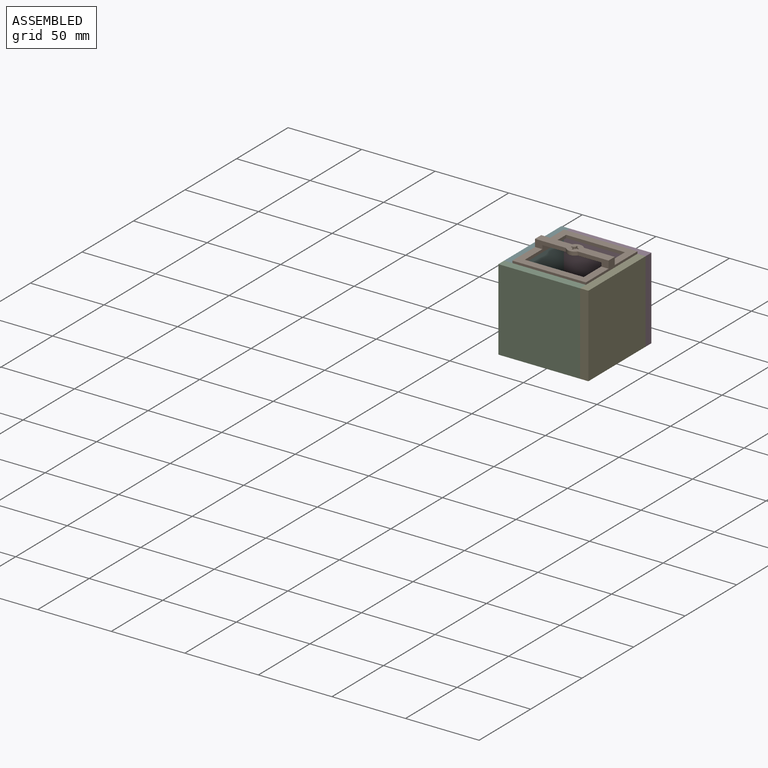
[diagram: assembled view]
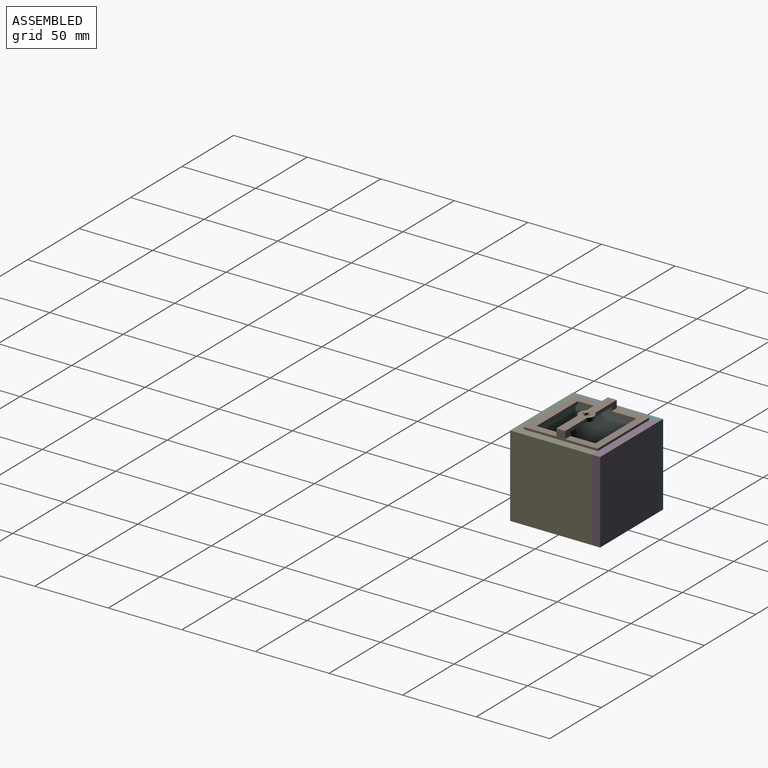
[diagram: assembled view, second angle]
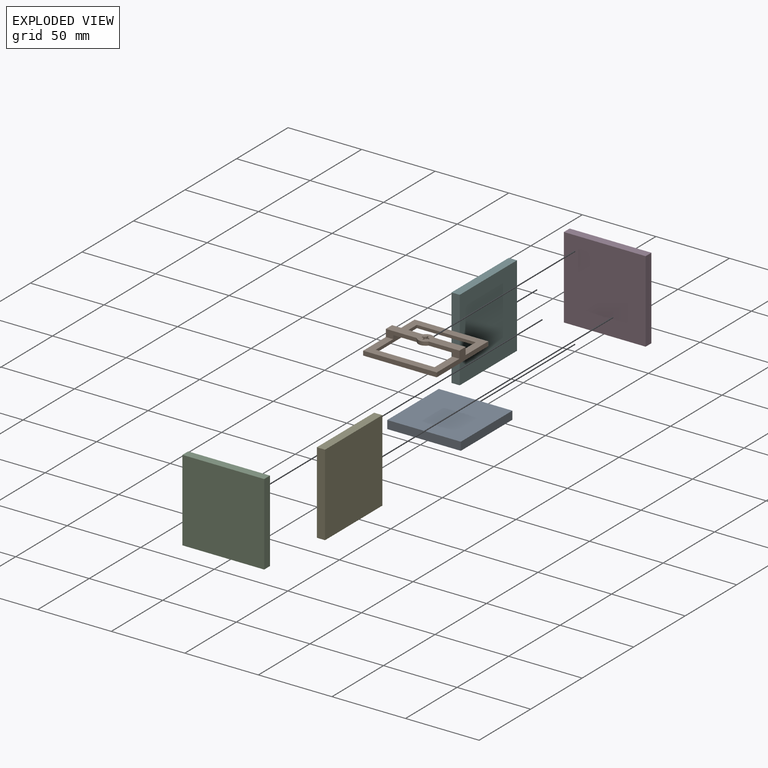
[diagram: exploded view]
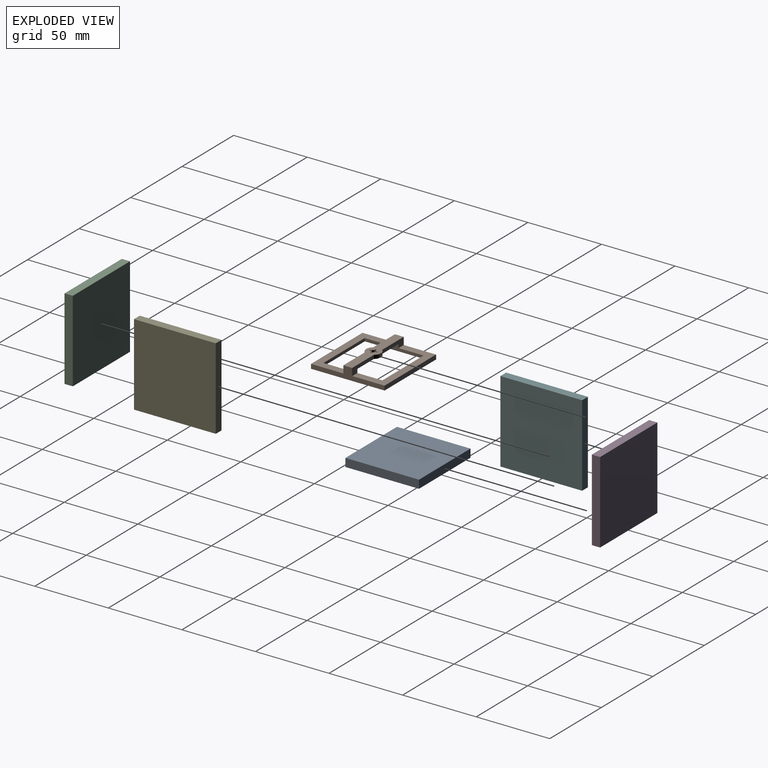
[diagram: exploded view, second angle]
ASSEMBLY  parts=6 mates=4
PART A: 6 faces, bbox 50x50x5.6 mm
  f0: plane 50x5.59mm, normal (1,0,0), area 279.5mm2, adj f1,f3,f4,f5
  f1: plane 50x5.59mm, normal (0,1,0), area 279.5mm2, adj f0,f2,f4,f5
  f2: plane 50x5.59mm, normal (-1,0,0), area 279.5mm2, adj f1,f3,f4,f5
  f3: plane 50x5.59mm, normal (0,-1,0), area 279.5mm2, adj f0,f2,f4,f5
  f4: plane 50x50mm, normal (0,0,1), area 2500mm2, adj f0,f1,f2,f3
  f5: plane 50x50mm, normal (0,0,-1), area 2500mm2, adj f0,f1,f2,f3
PART B: 42 faces, bbox 50x50x8 mm
  f0: plane 50x10mm, normal (0,0,1), area 311.2mm2, adj f5,f7,f18,f19,f20,f21,f23,f24
  f1: cylinder r=0.21mm len=1mm, axis (0,0,1), area 1.3mm2, adj f22,f25
  f2: plane 50x22mm, normal (0,0,1), area 420mm2, adj f5,f6,f7,f14,f15,f16,f18,f20
  f3: plane 50x22mm, normal (0,0,1), area 420mm2, adj f5,f7,f8,f14,f16,f17,f19,f21
  f4: plane 45x45mm, normal (0,0,-1), area 425mm2, adj f10,f11,f12,f13,f14,f15,f16,f17
  f5: plane 50x8mm, normal (1,0,0), area 180mm2, adj f0,f2,f3,f6,f8,f9,f20,f21
  f6: plane 50x3mm, normal (0,1,0), area 150mm2, adj f2,f5,f7,f9
  f7: plane 50x8mm, normal (-1,0,0), area 180mm2, adj f0,f2,f3,f6,f8,f9,f18,f19
  f8: plane 50x3mm, normal (0,-1,0), area 150mm2, adj f3,f5,f7,f9
  f9: plane 50x50mm, normal (0,0,-1), area 475mm2, adj f5,f6,f7,f8,f10,f11,f12,f13
  f10: plane 45x1mm, normal (-1,0,0), area 45mm2, adj f4,f9,f11,f13
  f11: plane 45x1mm, normal (0,-1,0), area 45mm2, adj f4,f9,f10,f12
  f12: plane 45x1mm, normal (1,0,0), area 45mm2, adj f4,f9,f11,f13
  f13: plane 45x1mm, normal (0,1,0), area 45mm2, adj f4,f9,f10,f12
  f14: plane 40x4.5mm, normal (-1,0,0), area 95mm2, adj f2,f3,f4,f15,f17,f20,f21,f22
  f15: plane 40x2mm, normal (0,-1,0), area 80mm2, adj f2,f4,f14,f16
  f16: plane 40x4.5mm, normal (1,0,0), area 95mm2, adj f2,f3,f4,f15,f17,f18,f19,f22
  f17: plane 40x2mm, normal (0,1,0), area 80mm2, adj f3,f4,f14,f16
  f18: plane 21x5mm, normal (0,1,0), area 65mm2, adj f0,f2,f7,f16,f22,f24
  f19: plane 21x5mm, normal (0,-1,0), area 65mm2, adj f0,f3,f7,f16,f22,f23
  f20: plane 21x5mm, normal (0,1,0), area 65mm2, adj f0,f2,f5,f14,f22,f24
  f21: plane 21x5mm, normal (0,-1,0), area 65mm2, adj f0,f3,f5,f14,f22,f23
  f22: plane 40x10mm, normal (0,0,-1), area 262.2mm2, adj f1,f14,f16,f18,f19,f20,f21,f23
  f23: cylinder r=5mm len=8mm, axis (0,0,-1), area 23.2mm2, adj f0,f19,f21,f22
  f24: cylinder r=5mm len=8mm, axis (0,0,-1), area 23.2mm2, adj f0,f18,f20,f22
  f25: plane 5x5mm, normal (0,0,1), area 11mm2, adj f1,f26,f27,f28,f29,f30,f31,f32
  f26: plane 1.5x1mm, normal (0,-1,0), area 1.5mm2, adj f0,f25,f27,f41
  f27: plane 1.5x1.09mm, normal (1,0,0), area 1.6mm2, adj f0,f25,f26,f28
  f28: cylinder r=1.5mm len=1.5mm, axis (0,0,1), area 2mm2, adj f0,f25,f27,f29
  f29: plane 1.5x1.09mm, normal (0,-1,0), area 1.6mm2, adj f0,f25,f28,f30
  f30: plane 1.5x1mm, normal (1,0,0), area 1.5mm2, adj f0,f25,f29,f31
  f31: plane 1.5x1.09mm, normal (0,1,0), area 1.6mm2, adj f0,f25,f30,f32
  f32: cylinder r=1.5mm len=1.5mm, axis (0,0,1), area 2mm2, adj f0,f25,f31,f33
  f33: plane 1.5x1.09mm, normal (1,0,0), area 1.6mm2, adj f0,f25,f32,f34
  f34: plane 1.5x1mm, normal (0,1,0), area 1.5mm2, adj f0,f25,f33,f35
  f35: plane 1.5x1.09mm, normal (-1,0,0), area 1.6mm2, adj f0,f25,f34,f36
  f36: cylinder r=1.5mm len=1.5mm, axis (0,0,1), area 2mm2, adj f0,f25,f35,f37
  f37: plane 1.5x1.09mm, normal (0,1,0), area 1.6mm2, adj f0,f25,f36,f38
  f38: plane 1.5x1mm, normal (-1,0,0), area 1.5mm2, adj f0,f25,f37,f39
  f39: plane 1.5x1.09mm, normal (0,-1,0), area 1.6mm2, adj f0,f25,f38,f40
  f40: cylinder r=1.5mm len=1.5mm, axis (0,0,1), area 2mm2, adj f0,f25,f39,f41
  f41: plane 1.5x1.09mm, normal (-1,0,0), area 1.6mm2, adj f0,f25,f26,f40
PART C: 6 faces, bbox 55.6x55.6x5.6 mm
  f0: plane 55.59x5.59mm, normal (-1,0,0), area 310.7mm2, adj f1,f3,f4,f5
  f1: plane 55.59x5.59mm, normal (0,-1,0), area 310.7mm2, adj f0,f2,f4,f5
  f2: plane 55.59x5.59mm, normal (1,0,0), area 310.7mm2, adj f1,f3,f4,f5
  f3: plane 55.59x5.59mm, normal (0,1,0), area 310.7mm2, adj f0,f2,f4,f5
  f4: plane 55.59x55.59mm, normal (0,0,1), area 3090.2mm2, adj f0,f1,f2,f3
  f5: plane 55.59x55.59mm, normal (0,0,-1), area 3090.2mm2, adj f0,f1,f2,f3
PART D: same geometry as C
PART E: same geometry as C
PART F: same geometry as C
PLACE A at identity
PLACE B t=(0.02,0,54.09)mm
PLACE C rot(axis=(1,0,0),90deg) t=(-30.57,-24.99,3.48)mm
PLACE D rot(axis=(1,0,0),90deg) t=(-25,30.59,3.48)mm
PLACE E rot(axis=(0,-1,0),90deg) t=(30.59,-27.1,0)mm
PLACE F rot(axis=(0,-1,0),90deg) t=(-24.98,-21.52,0)mm
MATE parallel C.f4 <-> E.f1  axis (0,-1,0) through (25.02,-30.58,27.8)mm
MATE parallel B.f6 <-> D.f4  axis (0,1,0) through (0.02,25,55.59)mm
MATE parallel D.f4 <-> A.f1  axis (0,-1,0) through (2.79,25,27.8)mm
MATE parallel F.f3 <-> D.f5  axis (0,1,0) through (-27.78,30.59,27.8)mm
